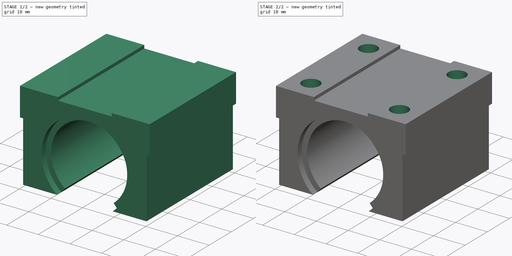
[diagram: build sequence overview — one tinted view per stage of 2, left to right]
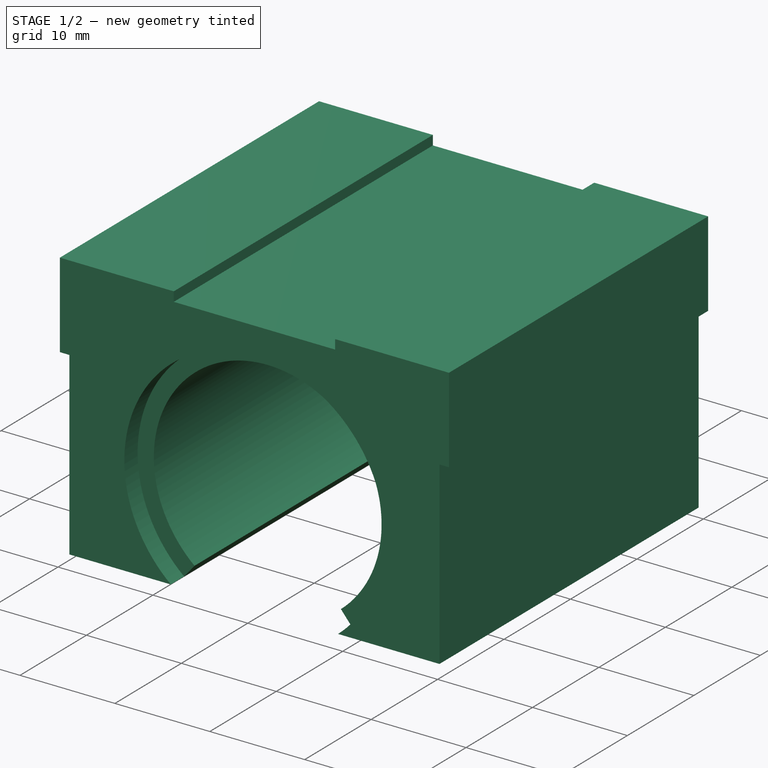
[diagram: stage 1 of 2 — iso view after this stage's code; geometry added in this stage tinted green]
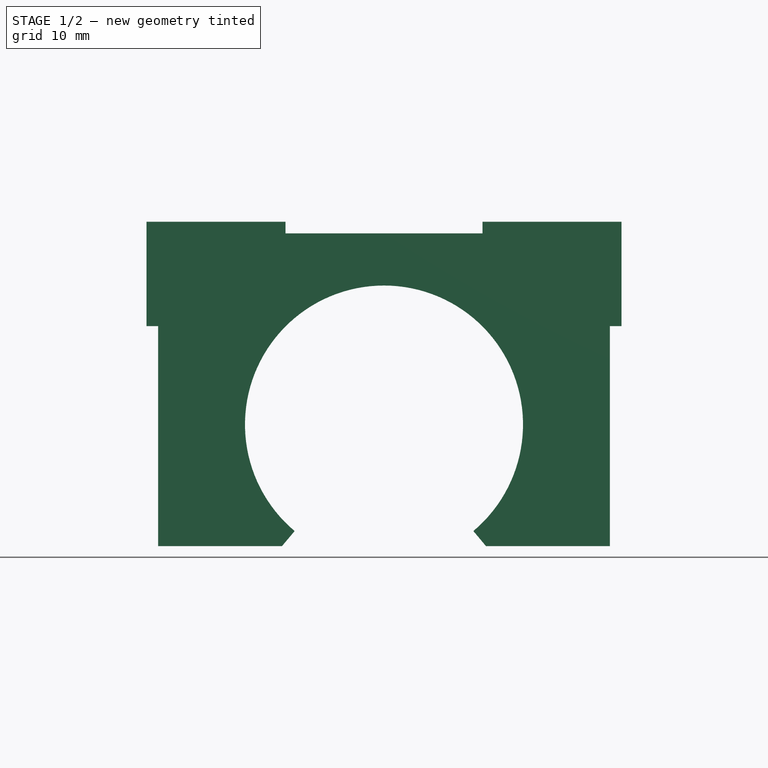
[diagram: stage 1 of 2 — front view after this stage's code; geometry added in this stage tinted green]
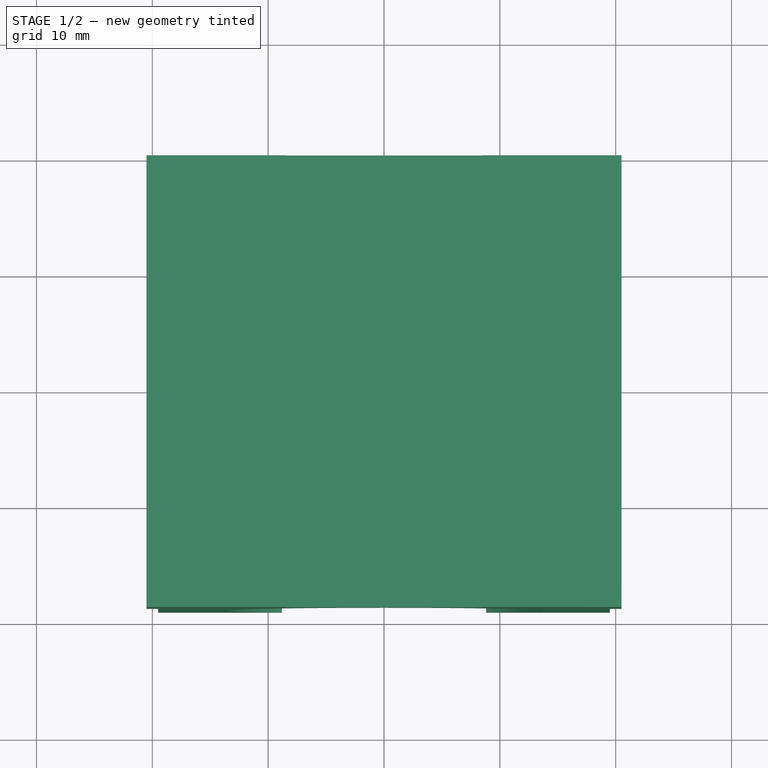
[diagram: stage 1 of 2 — top view after this stage's code; geometry added in this stage tinted green]
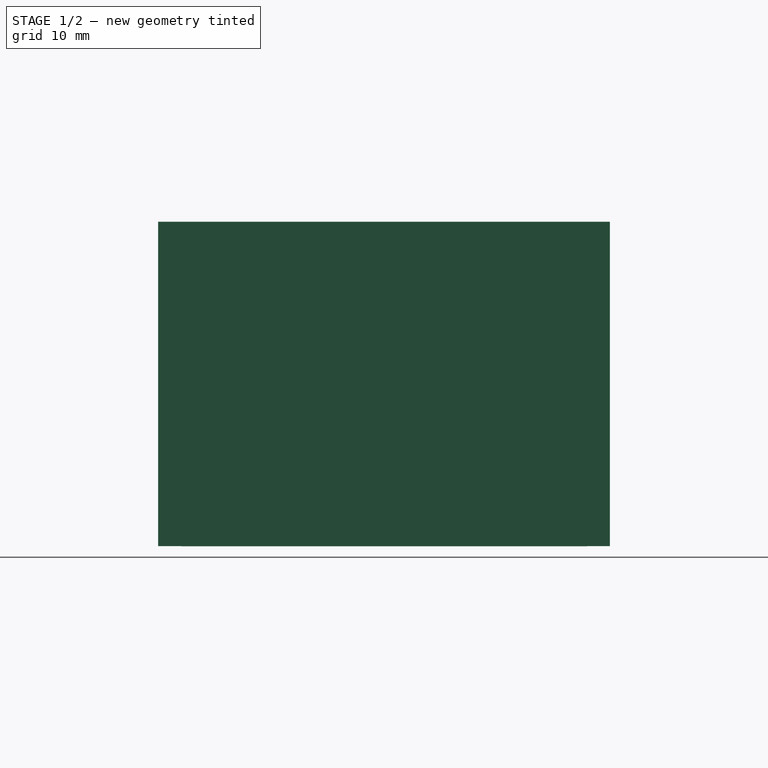
[diagram: stage 1 of 2 — right view after this stage's code; geometry added in this stage tinted green]
FCSTD DOCUMENT  (FreeCAD 1.0R39109 (Git))
Label: 1_linear_bearing
License: All rights reserved
LicenseURL: https://en.wikipedia.org/wiki/All_rights_reserved
objects: Sketcher::SketchObject×3, PartDesign::Pad×2, App::FeaturePython×1, PartDesign::Plane×1, PartDesign::Hole×1, PartDesign::Body×1
note: 17 computed .brp shape members not serialized (recipe doc carries the construction recipe); baked Part::Feature solids carry a one-line shape summary decoded from their .brp

FEATURE [Sketcher::SketchObject] Sketch
  ArcFitTolerance = 1e-06
  AttachmentSupport = -> [XZ_Plane]
  B_1 = 28
  C_1 = 26
  E_1 = 20.5
  F_1 = 28
  FullyConstrained = false
  H_1 = 17.5
  L1_1 = 10
  L_1 = 39
  MakeInternals = false
  MapMode = 5
  Placement = pos=(0,0,0) rot=(1,0,0;1.5708rad)
  Q_1 = 80
  T_1 = 9
  W_1 = 41
  h1 = 7.5
  expr: Constraints[14] = dd.Q_1
  expr: Constraints[33] = dd.T_1
  expr: Constraints[34] = dd.F_1
  expr: Constraints[35] = dd.W_1
  expr: Constraints[49] = dd.H_1
  expr: Constraints[52] = 12 mm
  sketch-geometry (19):
    g0: ArcOfCircle CenterX=0 CenterY=0 CenterZ=0 NormalX=0 NormalY=0 NormalZ=1 AngleXU=0 Radius=13.7068 StartAngle=5.41052 EndAngle=10.2974
    g1: LineSegment StartX=-19.5 StartY=-10.5 StartZ=0 EndX=-8.81055 EndY=-10.5 EndZ=0
    g2: LineSegment [constr] StartX=19.5 StartY=-10.5 StartZ=0 EndX=19.5 EndY=17.5 EndZ=0
    g3: LineSegment [constr] StartX=-19.5 StartY=17.5 StartZ=0 EndX=-19.5 EndY=-10.5 EndZ=0
    g4: LineSegment StartX=8.81055 StartY=-10.5 StartZ=0 EndX=19.5 EndY=-10.5 EndZ=0
    g5: LineSegment [constr] StartX=0 StartY=0 StartZ=0 EndX=-8.81055 EndY=-10.5 EndZ=0
    g6: LineSegment [constr] StartX=0 StartY=0 StartZ=0 EndX=8.81055 EndY=-10.5 EndZ=0
    g7: LineSegment [constr] StartX=-8.81055 StartY=-10.5 StartZ=0 EndX=8.81055 EndY=-10.5 EndZ=0
    g8: LineSegment StartX=-19.5 StartY=-10.5 StartZ=0 EndX=-19.5 EndY=8.5 EndZ=0
    g9: LineSegment StartX=-19.5 StartY=8.5 StartZ=0 EndX=-20.5 EndY=8.5 EndZ=0
    g10: LineSegment StartX=-20.5 StartY=8.5 StartZ=0 EndX=-20.5 EndY=17.5 EndZ=0
    g11: LineSegment StartX=19.5 StartY=-10.5 StartZ=0 EndX=19.5 EndY=8.5 EndZ=0
    g12: LineSegment StartX=19.5 StartY=8.5 StartZ=0 EndX=20.5 EndY=8.5 EndZ=0
    g13: LineSegment StartX=20.5 StartY=8.5 StartZ=0 EndX=20.5 EndY=17.5 EndZ=0
    g14: LineSegment StartX=-20.5 StartY=17.5 StartZ=0 EndX=-8.5 EndY=17.5 EndZ=0
    g15: LineSegment StartX=-8.5 StartY=17.5 StartZ=0 EndX=-8.5 EndY=16.5 EndZ=0
    g16: LineSegment StartX=-8.5 StartY=16.5 StartZ=0 EndX=8.5 EndY=16.5 EndZ=0
    g17: LineSegment StartX=8.5 StartY=16.5 StartZ=0 EndX=8.5 EndY=17.5 EndZ=0
    g18: LineSegment StartX=8.5 StartY=17.5 StartZ=0 EndX=20.5 EndY=17.5 EndZ=0
  constraints (53):
    c: Coincident(g0,g-1)
    c: Coincident(g4,g2)
    c: Coincident(g3,g1)
    c: Horizontal(g1)
    c: Vertical(g2)
    c: Vertical(g3)
    c: PointOnObject(g0,g4)
    c: Coincident(g1,g0)
    c: PointOnObject(g4,g0)
    c: Equal(g1,g4)
    c: Coincident(g5,g0)
    c: Coincident(g5,g0)
    c: Coincident(g6,g0)
    c: Coincident(g6,g0)
    c: Angle(g5,g6) = 1.39626
    c: Coincident(g7,g0)
    c: Coincident(g7,g4)
    c: Horizontal(g7)
    c: Horizontal(g4)
    c: Coincident(g1,g8)
    c: PointOnObject(g8,g3)
    c: Coincident(g8,g9)
    c: Coincident(g9,g10)
    c: Coincident(g2,g11)
    c: PointOnObject(g11,g2)
    c: Coincident(g11,g12)
    c: Horizontal(g12)
    c: Coincident(g12,g13)
    c: Vertical(g13)
    c: Vertical(g10)
    c: Horizontal(g9)
    c: Equal(g10,g13)
    c: Equal(g9,g12)
    c: Distance(g10,g10) = 9
    c: Distance(g10,g1) = 28
    c: Distance(g13,g10) = 41
    c: Distance(g13,g2) = 1
    c: Coincident(g10,g14)
    c: Horizontal(g14)
    c: Coincident(g14,g15)
    c: Coincident(g15,g16)
    c: Horizontal(g16)
    c: Coincident(g16,g17)
    c: Coincident(g17,g18)
    c: Coincident(g18,g13)
    c: Horizontal(g18)
    c: Vertical(g15)
    c: Vertical(g17)
    c: Equal(g14,g18)
    c: Distance(g0,g14) = 17.5
    c: PointOnObject(g14,g18)
    c: Distance(g14,g16) = 1
    c: Distance(g18,g18) = 12
FEATURE [App::FeaturePython] dd  # WARN: FeaturePython — macro-defined, semantics opaque (R4)
  B_1 = 28
  C_1 = 26
  DynamicData = Created with DynamicData (v2.74) workbench. | This is a simple container object built | for holding custom properties.
  E_1 = 20.5
  F_1 = 28
  H_1 = 17.5
  L1_1 = 10
  L_1 = 39
  Q_1 = 80
  T_1 = 9
  W_1 = 41
  h1 = 7.5
FEATURE [PartDesign::Pad] Pad
  Direction = (0,-1,2e-16)
  Length = 39
  Length2 = 10
  Placement = pos=(0,0,0) rot=(1,0,0;1.5708rad)
  Profile = -> Sketch
  ReferenceAxis = -> Sketch [N_Axis]
  Refine = true
  Suppressed = false
  Type = 0
  expr: Length = dd.L_1
FEATURE [PartDesign::Plane] DatumPlane
  AttachmentOffset = pos=(0,0,-2) rot=(0,0,1;0rad)
  AttachmentSupport = -> [Pad]
  Length = 60
  MapMode = 5
  Placement = pos=(0,-37,-4e-16) rot=(1,0,0;1.5708rad)
  ResizeMode = 0
  Width = 60
FEATURE [Sketcher::SketchObject] Sketch001
  ArcFitTolerance = 1e-06
  AttachmentSupport = -> [DatumPlane]
  ExternalGeometry = -> [Pad]
  FullyConstrained = false
  MakeInternals = false
  MapMode = 5
  Placement = pos=(0,-37,-4e-16) rot=(1,0,0;1.5708rad)
  sketch-geometry (6):
    g0: LineSegment [constr] StartX=0 StartY=0 StartZ=0 EndX=-8.81055 EndY=-10.5 EndZ=0
    g1: LineSegment [constr] StartX=0 StartY=0 StartZ=0 EndX=8.81055 EndY=-10.5 EndZ=0
    g2: ArcOfCircle CenterX=0 CenterY=0 CenterZ=0 NormalX=0 NormalY=0 NormalZ=1 AngleXU=0 Radius=13.7068 StartAngle=5.4104 EndAngle=10.2974
    g3: ArcOfCircle CenterX=0 CenterY=0 CenterZ=0 NormalX=0 NormalY=0 NormalZ=1 AngleXU=0 Radius=12 StartAngle=5.41052 EndAngle=10.2974
    g4: LineSegment StartX=-7.71345 StartY=-9.19253 StartZ=0 EndX=-8.81055 EndY=-10.5 EndZ=0
    g5: LineSegment StartX=7.71345 StartY=-9.19253 StartZ=0 EndX=8.80931 EndY=-10.501 EndZ=0
  constraints (14):
    c: Coincident(g0,g-1)
    c: Coincident(g0,g-3)
    c: Coincident(g1,g0)
    c: Coincident(g1,g-3)
    c: Coincident(g2,g0)
    c: Coincident(g2,g0)
    c: Coincident(g3,g0)
    c: PointOnObject(g3,g0)
    c: PointOnObject(g3,g1)
    c: Coincident(g4,g3)
    c: Coincident(g4,g0)
    c: Coincident(g5,g3)
    c: Coincident(g5,g2)
    c: Radius(g3) = 12
FEATURE [PartDesign::Pad] Pad001
  BaseFeature = -> Pad
  Direction = (0,-1,2e-16)
  Length = 35
  Length2 = 10
  Placement = pos=(0,0,0) rot=(1,0,0;1.5708rad)
  Profile = -> Sketch001
  ReferenceAxis = -> Sketch001 [N_Axis]
  Refine = true
  Reversed = true
  Suppressed = false
  Type = 0
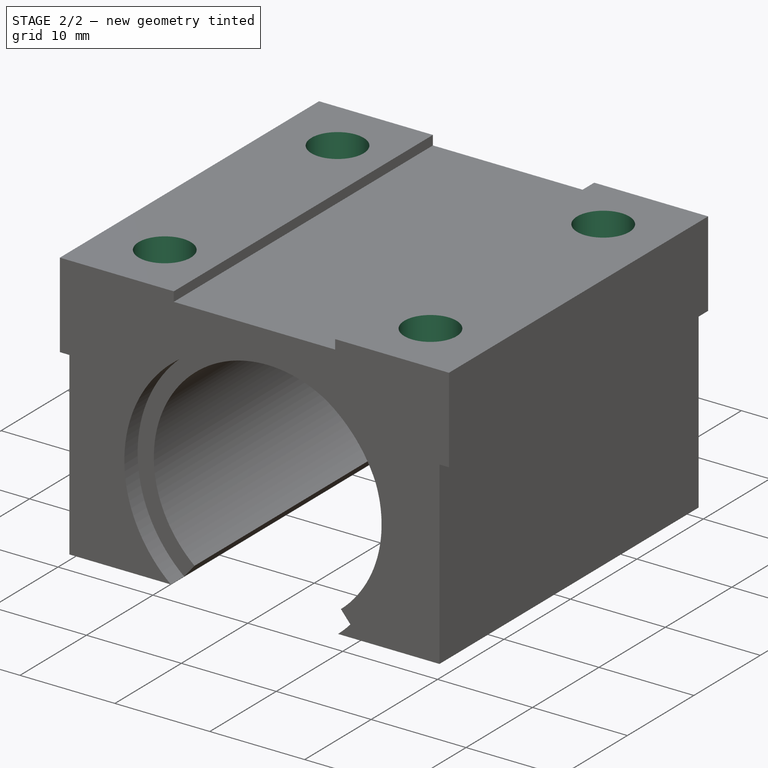
[diagram: stage 2 of 2 — iso view after this stage's code; geometry added in this stage tinted green]
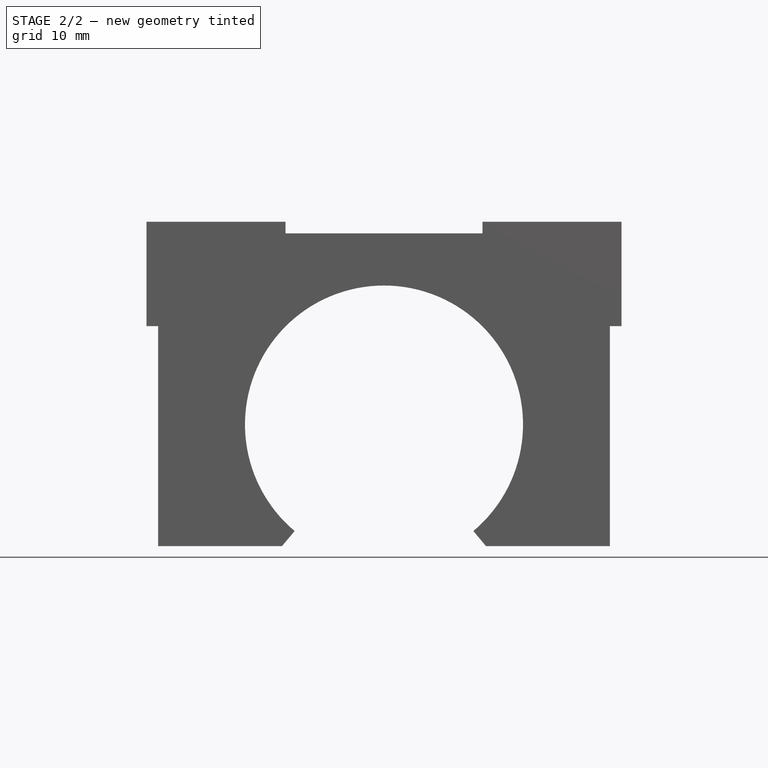
[diagram: stage 2 of 2 — front view after this stage's code; geometry added in this stage tinted green]
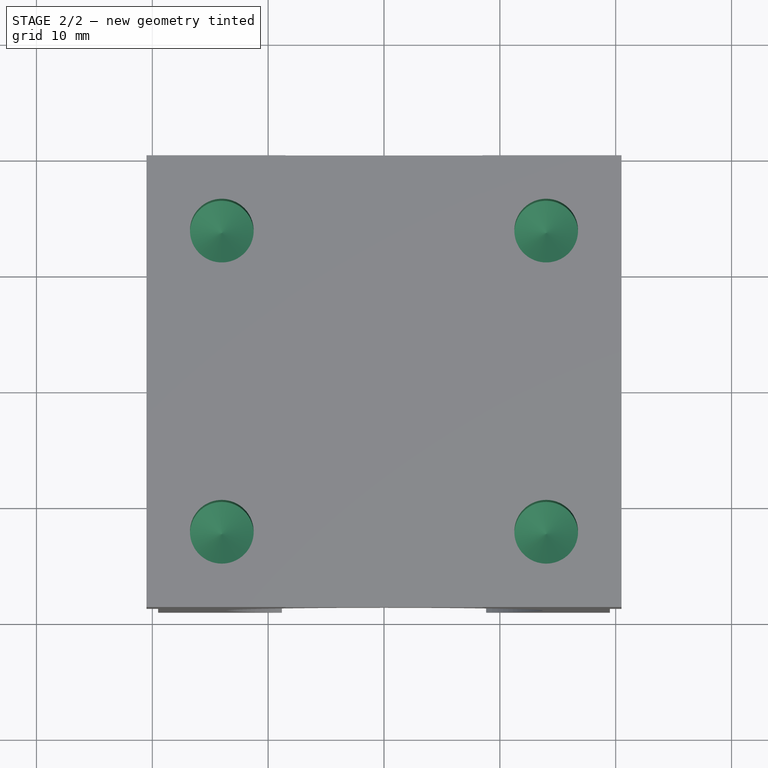
[diagram: stage 2 of 2 — top view after this stage's code; geometry added in this stage tinted green]
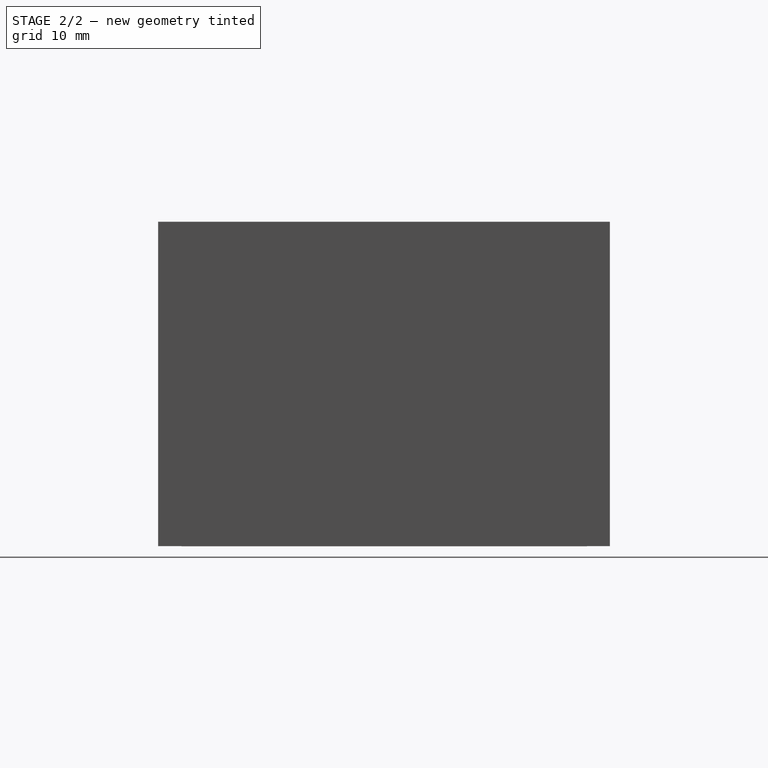
[diagram: stage 2 of 2 — right view after this stage's code; geometry added in this stage tinted green]
FEATURE [Sketcher::SketchObject] Sketch002
  ArcFitTolerance = 1e-06
  AttachmentSupport = -> [Pad001]
  ExternalGeometry = -> [Pad001]
  FullyConstrained = true
  MakeInternals = false
  MapMode = 5
  Placement = pos=(0,3.9e-15,17.5) rot=(0,0,1;3.14159rad)
  expr: Constraints[8] = dd.C_1
  expr: Constraints[9] = dd.B_1
  sketch-geometry (12):
    g0: LineSegment [constr] StartX=-14 StartY=32.5 StartZ=0 EndX=-14 EndY=6.5 EndZ=0
    g1: LineSegment [constr] StartX=-14 StartY=6.5 StartZ=0 EndX=14 EndY=6.5 EndZ=0
    g2: LineSegment [constr] StartX=14 StartY=6.5 StartZ=0 EndX=14 EndY=32.5 EndZ=0
    g3: LineSegment [constr] StartX=14 StartY=32.5 StartZ=0 EndX=-14 EndY=32.5 EndZ=0
    g4: Circle CenterX=-14 CenterY=32.5 CenterZ=0 NormalX=0 NormalY=0 NormalZ=1 AngleXU=0 Radius=2.5
    g5: Circle CenterX=14 CenterY=32.5 CenterZ=0 NormalX=0 NormalY=0 NormalZ=1 AngleXU=0 Radius=2.5
    g6: Circle CenterX=14 CenterY=6.5 CenterZ=0 NormalX=0 NormalY=0 NormalZ=1 AngleXU=0 Radius=2.5
    g7: Circle CenterX=-14 CenterY=6.5 CenterZ=0 NormalX=0 NormalY=0 NormalZ=1 AngleXU=0 Radius=2.5
    g8: LineSegment [constr] StartX=-14 StartY=19.5 StartZ=0 EndX=-20.5 EndY=19.5 EndZ=0
    g9: LineSegment [constr] StartX=14 StartY=19.5 StartZ=0 EndX=20.5 EndY=19.5 EndZ=0
    g10: LineSegment [constr] StartX=-8.5 StartY=6.5 StartZ=0 EndX=-8.5 EndY=0 EndZ=0
    g11: LineSegment [constr] StartX=-8.5 StartY=32.5 StartZ=0 EndX=-8.5 EndY=39 EndZ=0
  constraints (30):
    c: Coincident(g0,g1)
    c: Coincident(g1,g2)
    c: Coincident(g2,g3)
    c: Coincident(g3,g0)
    c: Vertical(g0)
    c: Vertical(g2)
    c: Horizontal(g1)
    c: Horizontal(g3)
    c: Distance(g2,g2) = 26
    c: Distance(g3,g3) = 28
    c: Coincident(g4,g0)
    c: Coincident(g5,g2)
    c: Coincident(g6,g1)
    c: Coincident(g7,g0)
    c: Equal(g4,g5)
    c: Equal(g5,g6)
    c: Equal(g6,g7)
    c: Diameter(g4) = 5
    c: Symmetric(g0,g0,g8)
    c: Symmetric(g-7,g-7,g8)
    c: Horizontal(g8)
    c: Symmetric(g2,g2,g9)
    c: Symmetric(g-4,g-4,g9)
    c: PointOnObject(g10,g1)
    c: Coincident(g10,g-6)
    c: PointOnObject(g11,g3)
    c: Coincident(g11,g-8)
    c: Vertical(g11)
    c: Vertical(g10)
    c: Equal(g9,g8)
FEATURE [PartDesign::Hole] Hole
  BaseFeature = -> Pad001
  CustomThreadClearance = 0
  Depth = 10
  DepthType = 0
  Diameter = 5.5
  DrillForDepth = false
  DrillPoint = 1
  DrillPointAngle = 118
  HoleCutCountersinkAngle = 90
  HoleCutCustomValues = false
  HoleCutDepth = 0
  HoleCutDiameter = 6.1
  HoleCutType = 0
  ModelThread = false
  Placement = pos=(0,0,0) rot=(1,0,0;1.5708rad)
  Profile = -> Sketch002
  Refine = true
  Suppressed = false
  Tapered = false
  TaperedAngle = 90
  ThreadClass = 0
  ThreadDepth = 10
  ThreadDepthType = 0
  ThreadDirection = 0
  ThreadFit = 0
  ThreadSize = 13
  ThreadType = 1
  Threaded = false
  UseCustomThreadClearance = false
FEATURE [PartDesign::Body] Body
  AllowCompound = false
  Group = -> [Sketch,Pad,DatumPlane,Sketch001,Pad001,Sketch002,Hole]
  Origin = -> Origin
  Tip = -> Hole
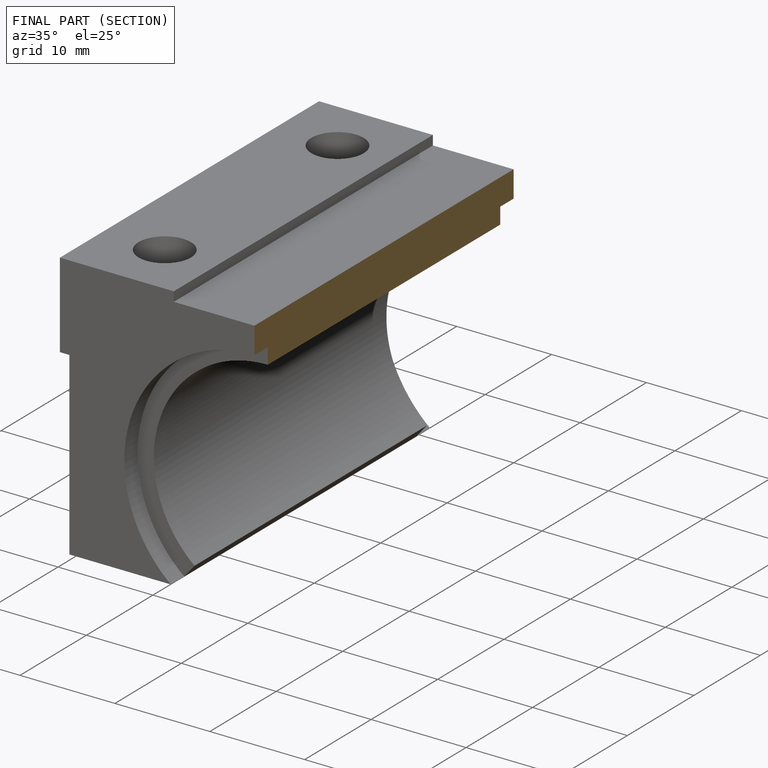
[diagram: finished part — half-section view (interior)]
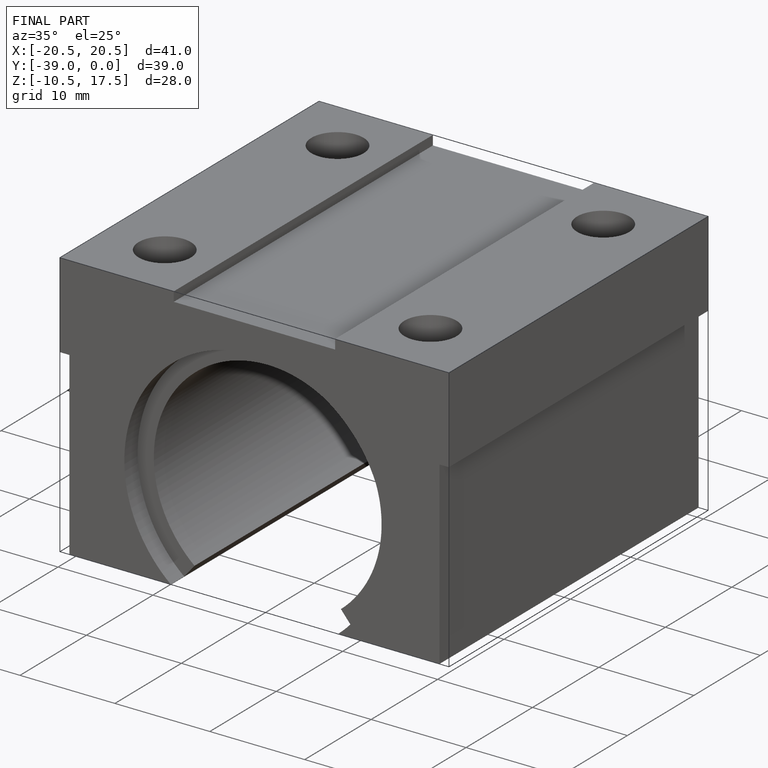
[diagram: finished part — iso view with bounding-box wireframe]
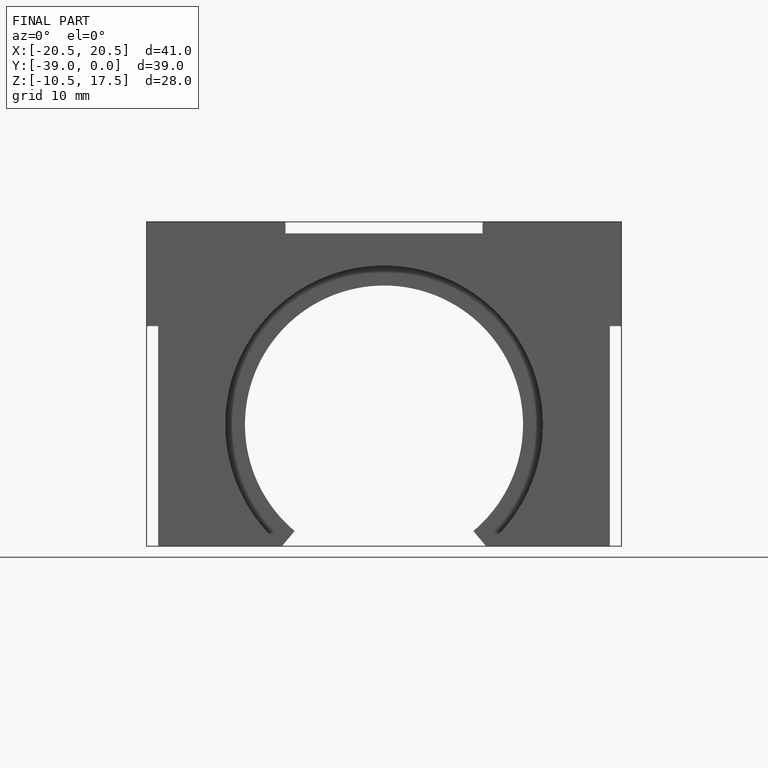
[diagram: finished part — front view with bounding-box wireframe]
